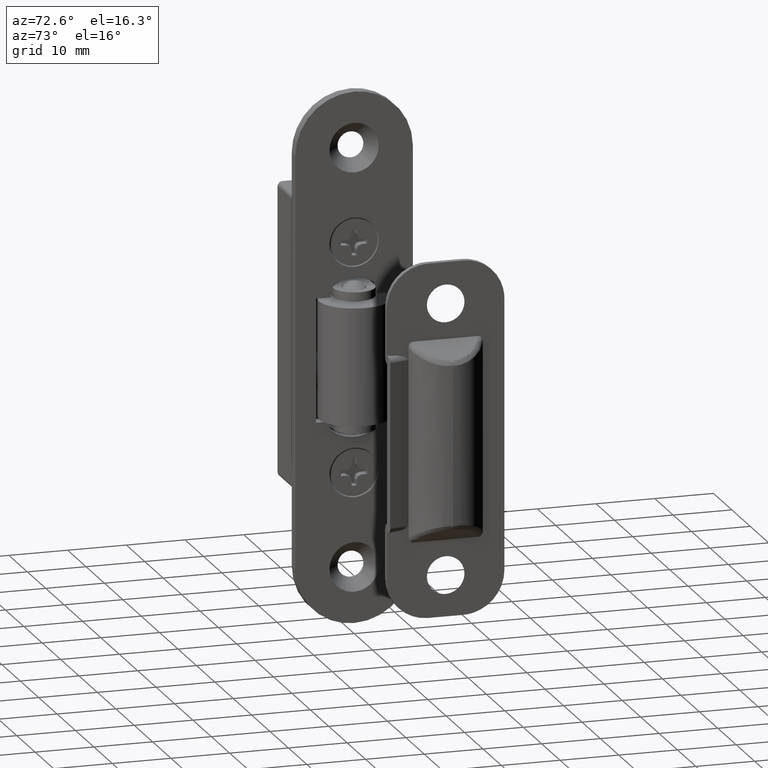
[diagram: clean part render]
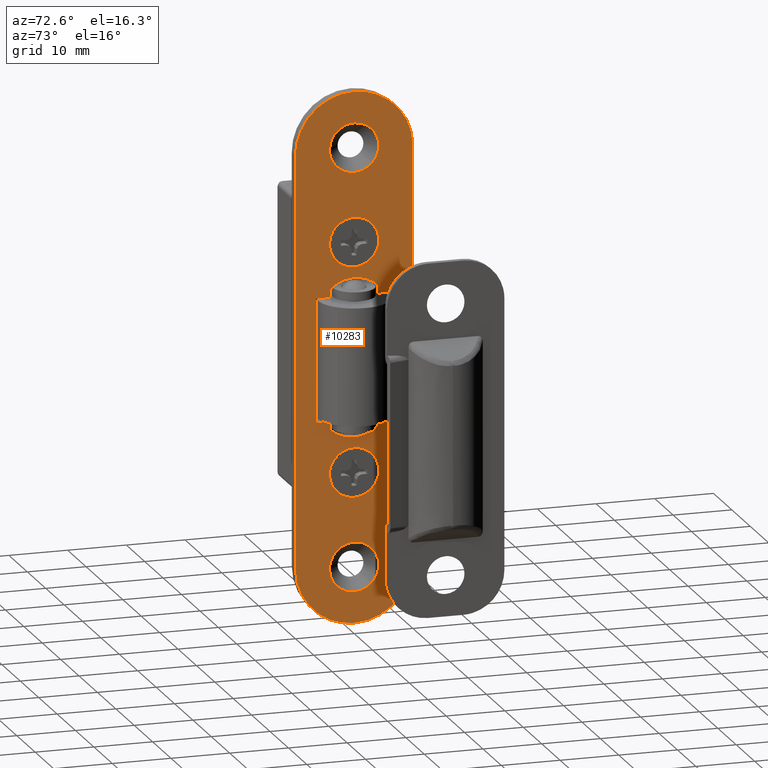
[diagram: same view with one face highlighted and labeled with its STEP entity id]
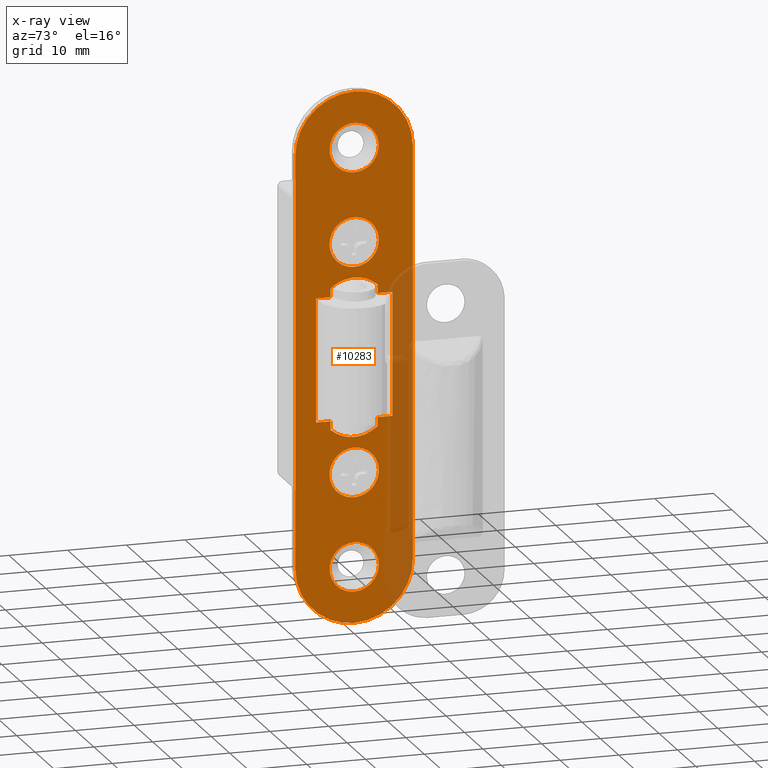
[diagram: x-ray of the same camera — body ghosted, the highlighted face saturated]
A machine part, auxiliary view. The second image highlights one B-rep face of the part: STEP entity #10283.
The next image is the same camera in x-ray: the body ghosted, the highlighted face saturated — about 19% of this face is hidden behind the body in this view.
In plain terms, the highlighted face is a freeform B-spline surface patch.
Its self-contained STEP definition (entity closure, byte-faithful):
#8758=CARTESIAN_POINT('',(-0.000000127589922,2.891088954432386,-22.546572080600281));
#8759=VERTEX_POINT('',#8758);
#8765=CARTESIAN_POINT('',(0.0,4.199999999999876,-19.499998977879880));
#8766=VERTEX_POINT('',#8765);
#8767=CARTESIAN_POINT('',(-0.000000127589922,2.891088954432386,-22.546572080600281));
#8768=CARTESIAN_POINT('',(-0.000000119913731,3.084271051086417,-22.363281099985912));
#8769=CARTESIAN_POINT('',(-0.000000101326676,3.470759188290290,-21.919462131662101));
#8770=CARTESIAN_POINT('',(-0.000000070583371,3.878747267155795,-21.185378060726858));
#8771=CARTESIAN_POINT('',(-0.000000035687701,4.140412021235725,-20.352144502934468));
#8772=CARTESIAN_POINT('',(-0.000000012639673,4.200050219923515,-19.801807176543370));
#8773=CARTESIAN_POINT('',(0.0,4.199999999999876,-19.499998977879880));
#8774=B_SPLINE_CURVE_WITH_KNOTS('',3,(#8767,#8768,#8769,#8770,#8771,#8772,#8773),.UNSPECIFIED.,.F.,.U.,(4,1,1,1,4),(0.000000034735828,0.798901644444813,1.757566852188273,2.503227493652744,3.408651733151656),.UNSPECIFIED.);
#8775=EDGE_CURVE('',#8759,#8766,#8774,.T.);
#8777=CARTESIAN_POINT('',(0.0,4.807121E-031,-15.300000000000001));
#8778=VERTEX_POINT('',#8777);
#8779=CARTESIAN_POINT('',(0.0,4.199999999999876,-19.499998977879880));
#8780=CARTESIAN_POINT('',(0.0,4.200089333518384,-19.156380804169679));
#8781=CARTESIAN_POINT('',(0.0,4.123661214923570,-18.537915498122619));
#8782=CARTESIAN_POINT('',(0.0,3.844486210474723,-17.757713986228190));
#8783=CARTESIAN_POINT('',(0.0,3.479346962281874,-17.113164387762328));
#8784=CARTESIAN_POINT('',(0.0,3.066532052600041,-16.603834164206930));
#8785=CARTESIAN_POINT('',(0.0,2.463574500565729,-16.063942290224041));
#8786=CARTESIAN_POINT('',(0.0,1.747760000560187,-15.640835812848280));
#8787=CARTESIAN_POINT('',(0.0,0.859004324312413,-15.359383449535990));
#8788=CARTESIAN_POINT('',(0.0,0.292065637414567,-15.299956247915009));
#8789=CARTESIAN_POINT('',(0.0,4.807121E-031,-15.300000000000001));
#8790=B_SPLINE_CURVE_WITH_KNOTS('',3,(#8779,#8780,#8781,#8782,#8783,#8784,#8785,#8786,#8787,#8788,#8789),.UNSPECIFIED.,.F.,.U.,(4,1,1,1,1,1,1,1,4),(0.000000121708704,1.030841463149830,1.855519226884957,2.474024404762239,3.247186588690337,3.814096205182862,4.896496278897972,5.721189998266727,6.597385391997104),.UNSPECIFIED.);
#8791=EDGE_CURVE('',#8766,#8778,#8790,.T.);
#8793=CARTESIAN_POINT('',(-0.000000127589932,-2.891088954432366,-16.453427919399740));
#8794=VERTEX_POINT('',#8793);
#8795=CARTESIAN_POINT('',(0.0,4.807121E-031,-15.300000000000001));
#8796=CARTESIAN_POINT('',(-0.000000010994056,-0.249116796116282,-15.299986772887390));
#8797=CARTESIAN_POINT('',(-0.000000035181158,-0.797177760076572,-15.348868151097641));
#8798=CARTESIAN_POINT('',(-0.000000064893778,-1.470442714479155,-15.545900468493411));
#8799=CARTESIAN_POINT('',(-0.000000097358794,-2.206074804575165,-15.896625588052171));
#8800=CARTESIAN_POINT('',(-0.000000115896851,-2.626132805083788,-16.201811956900130));
#8801=CARTESIAN_POINT('',(-0.000000127589932,-2.891088954432366,-16.453427919399740));
#8802=B_SPLINE_CURVE_WITH_KNOTS('',3,(#8795,#8796,#8797,#8798,#8799,#8800,#8801),.UNSPECIFIED.,.F.,.U.,(4,1,1,1,4),(0.000000028212433,0.747359194753699,1.644173595180333,2.092605752108407,3.188735094356407),.UNSPECIFIED.);
#8803=EDGE_CURVE('',#8778,#8794,#8802,.T.);
#8889=CARTESIAN_POINT('',(0.0,-4.199999999999876,-19.500001022120191));
#8890=VERTEX_POINT('',#8889);
#8891=CARTESIAN_POINT('',(-0.000000127589932,-2.891088954432366,-16.453427919399740));
#8892=CARTESIAN_POINT('',(-0.000000117867574,-3.135809969921077,-16.685576930037961));
#8893=CARTESIAN_POINT('',(-0.000000095360232,-3.580290007642232,-17.223003893630182));
#8894=CARTESIAN_POINT('',(-0.000000052040854,-4.072170019507790,-18.257377471640190));
#8895=CARTESIAN_POINT('',(-0.000000018588621,-4.200232381704464,-19.056144774480721));
#8896=CARTESIAN_POINT('',(0.0,-4.199999999999876,-19.500001022120191));
#8897=B_SPLINE_CURVE_WITH_KNOTS('',3,(#8891,#8892,#8893,#8894,#8895,#8896),.UNSPECIFIED.,.F.,.U.,(4,1,1,4),(0.000000034737508,1.011945163984032,2.077135547464278,3.408651733151720),.UNSPECIFIED.);
#8898=EDGE_CURVE('',#8794,#8890,#8897,.T.);
#8900=CARTESIAN_POINT('',(0.0,4.807121E-031,-23.699999999999999));
#8901=VERTEX_POINT('',#8900);
#8902=CARTESIAN_POINT('',(0.0,-4.199999999999876,-19.500001022120191));
#8903=CARTESIAN_POINT('',(0.0,-4.200084888898138,-19.843617812276388));
#8904=CARTESIAN_POINT('',(0.0,-4.123648187614274,-20.462074762723429));
#8905=CARTESIAN_POINT('',(0.0,-3.780616409741954,-21.421155589516498));
#8906=CARTESIAN_POINT('',(0.0,-3.245739360101021,-22.232394481763809));
#8907=CARTESIAN_POINT('',(0.0,-2.609234798520272,-22.816249963966371));
#8908=CARTESIAN_POINT('',(0.0,-2.003242676273612,-23.210464674858311));
#8909=CARTESIAN_POINT('',(0.0,-1.185312156901791,-23.579238924249939));
#8910=CARTESIAN_POINT('',(0.0,-0.463909514894941,-23.700257724143910));
#8911=CARTESIAN_POINT('',(0.0,4.807121E-031,-23.699999999999999));
#8912=B_SPLINE_CURVE_WITH_KNOTS('',3,(#8902,#8903,#8904,#8905,#8906,#8907,#8908,#8909,#8910,#8911),.UNSPECIFIED.,.F.,.U.,(4,1,1,1,1,1,1,4),(0.000000121715583,1.030841463155931,1.855519226890218,3.040998846687900,3.917172208473828,4.432604890989956,5.205756228323995,6.597385391997080),.UNSPECIFIED.);
#8913=EDGE_CURVE('',#8890,#8901,#8912,.T.);
#8915=CARTESIAN_POINT('',(0.0,4.807121E-031,-23.699999999999999));
#8916=CARTESIAN_POINT('',(-0.000000014659054,0.332162835564957,-23.700074345791091));
#8917=CARTESIAN_POINT('',(-0.000000041043021,0.930003119288854,-23.628682294682811));
#8918=CARTESIAN_POINT('',(-0.000000085590032,1.939403922563135,-23.280610870429321));
#8919=CARTESIAN_POINT('',(-0.000000112710463,2.553931930805967,-22.866904587818610));
#8920=CARTESIAN_POINT('',(-0.000000127589922,2.891088954432386,-22.546572080600281));
#8921=B_SPLINE_CURVE_WITH_KNOTS('',3,(#8915,#8916,#8917,#8918,#8919,#8920),.UNSPECIFIED.,.F.,.U.,(4,1,1,4),(0.000000028212705,0.996481803873372,1.793649544933215,3.188735094356434),.UNSPECIFIED.);
#8922=EDGE_CURVE('',#8901,#8759,#8921,.T.);
#8958=CARTESIAN_POINT('',(0.000000127278828,-3.096565096122050,22.337479129950609));
#8959=VERTEX_POINT('',#8958);
#8965=CARTESIAN_POINT('',(0.0,-4.199999999999876,19.500001022120191));
#8966=VERTEX_POINT('',#8965);
#8967=CARTESIAN_POINT('',(0.0,-4.199999999999876,19.500001022120191));
#8968=CARTESIAN_POINT('',(0.000000015285186,-4.200080556526580,19.840759861734970));
#8969=CARTESIAN_POINT('',(0.000000039301136,-4.134444288504318,20.376157130144652));
#8970=CARTESIAN_POINT('',(0.000000083731544,-3.814074549363801,21.366662103305519));
#8971=CARTESIAN_POINT('',(0.000000110653527,-3.436758349952064,21.966844644738870));
#8972=CARTESIAN_POINT('',(0.000000127278828,-3.096565096122050,22.337479129950609));
#8973=B_SPLINE_CURVE_WITH_KNOTS('',3,(#8967,#8968,#8969,#8970,#8971,#8972),.UNSPECIFIED.,.F.,.U.,(4,1,1,4),(0.000000028383936,1.022254044866874,1.606374213970514,3.115429270614884),.UNSPECIFIED.);
#8974=EDGE_CURVE('',#8966,#8959,#8973,.T.);
#8976=CARTESIAN_POINT('',(0.0,0.0,15.300000000000001));
#8977=VERTEX_POINT('',#8976);
#8978=CARTESIAN_POINT('',(0.0,0.0,15.300000000000001));
#8979=CARTESIAN_POINT('',(0.0,-0.326433328216844,15.299925805410149));
#8980=CARTESIAN_POINT('',(0.0,-0.876167329561973,15.364449247903361));
#8981=CARTESIAN_POINT('',(0.0,-1.761749105218752,15.650870568716860));
#8982=CARTESIAN_POINT('',(0.0,-2.510649269323726,16.087394656486651));
#8983=CARTESIAN_POINT('',(0.0,-3.252239486347556,16.784788390241680));
#8984=CARTESIAN_POINT('',(0.0,-3.791684412939069,17.592035443133859));
#8985=CARTESIAN_POINT('',(0.0,-4.129478734541383,18.555085310197018));
#8986=CARTESIAN_POINT('',(0.0,-4.200051839062726,19.190749578707749));
#8987=CARTESIAN_POINT('',(0.0,-4.199999999999876,19.500001022120191));
#8988=B_SPLINE_CURVE_WITH_KNOTS('',3,(#8978,#8979,#8980,#8981,#8982,#8983,#8984,#8985,#8986,#8987),.UNSPECIFIED.,.F.,.U.,(4,1,1,1,1,1,1,4),(0.000000121356852,0.979284528902885,1.649347558732350,2.783293729390979,3.556390393598517,4.690322748570147,5.669633239808733,6.597386544171937),.UNSPECIFIED.);
#8989=EDGE_CURVE('',#8977,#8966,#8988,.T.);
#8991=CARTESIAN_POINT('',(0.000000127278820,3.096565096122033,16.662520870049409));
#8992=VERTEX_POINT('',#8991);
#8993=CARTESIAN_POINT('',(0.000000127278820,3.096565096122033,16.662520870049409));
#8994=CARTESIAN_POINT('',(0.000000117713186,2.863842868100833,16.408408959030439));
#8995=CARTESIAN_POINT('',(0.000000097133566,2.363161527211673,15.981761814715290));
#8996=CARTESIAN_POINT('',(0.000000067757120,1.648462258628189,15.616165008336200));
#8997=CARTESIAN_POINT('',(0.000000035777995,0.870442470896092,15.366209266847550));
#8998=CARTESIAN_POINT('',(0.000000014908886,0.362718123610681,15.299877925597720));
#8999=CARTESIAN_POINT('',(0.0,0.0,15.300000000000001));
#9000=B_SPLINE_CURVE_WITH_KNOTS('',3,(#8993,#8994,#8995,#8996,#8997,#8998,#8999),.UNSPECIFIED.,.F.,.U.,(4,1,1,1,4),(0.000000038603996,1.033707591047397,1.958582947615455,2.393839093075838,3.481956358413444),.UNSPECIFIED.);
#9001=EDGE_CURVE('',#8992,#8977,#9000,.T.);
#9087=CARTESIAN_POINT('',(0.0,4.199999999999876,19.499998977879880));
#9088=VERTEX_POINT('',#9087);
#9089=CARTESIAN_POINT('',(0.0,4.199999999999876,19.499998977879880));
#9090=CARTESIAN_POINT('',(0.000000013829236,4.200056478369770,19.191698201501630));
#9091=CARTESIAN_POINT('',(0.000000038574081,4.138950291934130,18.640051362331810));
#9092=CARTESIAN_POINT('',(0.000000083148222,3.823942932435970,17.646342030267292));
#9093=CARTESIAN_POINT('',(0.000000111188109,3.425706675512710,17.021237549938711));
#9094=CARTESIAN_POINT('',(0.000000127278820,3.096565096122033,16.662520870049409));
#9095=B_SPLINE_CURVE_WITH_KNOTS('',3,(#9089,#9090,#9091,#9092,#9093,#9094),.UNSPECIFIED.,.F.,.U.,(4,1,1,4),(0.000000028381526,0.924896228881257,1.655063897063775,3.115429270614945),.UNSPECIFIED.);
#9096=EDGE_CURVE('',#9088,#8992,#9095,.T.);
#9098=CARTESIAN_POINT('',(0.0,0.0,23.699999999999999));
#9099=VERTEX_POINT('',#9098);
#9100=CARTESIAN_POINT('',(0.0,0.0,23.699999999999999));
#9101=CARTESIAN_POINT('',(0.0,0.326433032691356,23.700074742951461));
#9102=CARTESIAN_POINT('',(0.0,0.876175288094685,23.635561390374519));
#9103=CARTESIAN_POINT('',(0.0,1.630503757863785,23.391491514201601));
#9104=CARTESIAN_POINT('',(0.0,2.212154463696283,23.089692117046329));
#9105=CARTESIAN_POINT('',(0.0,2.823517213653240,22.642131044447321));
#9106=CARTESIAN_POINT('',(0.0,3.309347009293834,22.125509992208379));
#9107=CARTESIAN_POINT('',(0.0,3.755825419039624,21.429910228938809));
#9108=CARTESIAN_POINT('',(0.0,4.099843386250924,20.599497147146330));
#9109=CARTESIAN_POINT('',(0.0,4.200146870460784,19.895162245856220));
#9110=CARTESIAN_POINT('',(0.0,4.199999999999876,19.499998977879880));
#9111=B_SPLINE_CURVE_WITH_KNOTS('',3,(#9100,#9101,#9102,#9103,#9104,#9105,#9106,#9107,#9108,#9109,#9110),.UNSPECIFIED.,.F.,.U.,(4,1,1,1,1,1,1,1,4),(0.000000121367318,0.979284528911462,1.649347558739600,2.370946597304840,2.937928951014365,3.917172893166649,4.484157643070808,5.411922243433297,6.597386544171900),.UNSPECIFIED.);
#9112=EDGE_CURVE('',#9099,#9088,#9111,.T.);
#9114=CARTESIAN_POINT('',(0.000000127278828,-3.096565096122050,22.337479129950609));
#9115=CARTESIAN_POINT('',(0.000000114696657,-2.790453597194396,22.671984402588141));
#9116=CARTESIAN_POINT('',(0.000000090952849,-2.212790787001241,23.126246467997209));
#9117=CARTESIAN_POINT('',(0.000000046955649,-1.142383424631221,23.589041269214711));
#9118=CARTESIAN_POINT('',(0.000000017890995,-0.435269815984724,23.700213506174940));
#9119=CARTESIAN_POINT('',(0.0,0.0,23.699999999999999));
#9120=B_SPLINE_CURVE_WITH_KNOTS('',3,(#9114,#9115,#9116,#9117,#9118,#9119),.UNSPECIFIED.,.F.,.U.,(4,1,1,4),(0.000000038603980,1.360151617735278,2.176222115273181,3.481956358413448),.UNSPECIFIED.);
#9121=EDGE_CURVE('',#8959,#9099,#9120,.T.);
#9158=CARTESIAN_POINT('',(-0.000000127589924,2.891088954432382,-38.546572080600278));
#9159=VERTEX_POINT('',#9158);
#9165=CARTESIAN_POINT('',(0.0,4.199999999999876,-35.499998977879869));
#9166=VERTEX_POINT('',#9165);
#9167=CARTESIAN_POINT('',(-0.000000127589924,2.891088954432382,-38.546572080600278));
#9168=CARTESIAN_POINT('',(-0.000000117356642,3.148724118620786,-38.302223261214792));
#9169=CARTESIAN_POINT('',(-0.000000099936769,3.488166061152559,-37.886274116954979));
#9170=CARTESIAN_POINT('',(-0.000000070428043,3.868110717208727,-37.181669144556047));
#9171=CARTESIAN_POINT('',(-0.000000039404474,4.126890952154666,-36.440893030472097));
#9172=CARTESIAN_POINT('',(-0.000000014126767,4.200074972587811,-35.837315777988891));
#9173=CARTESIAN_POINT('',(0.0,4.199999999999876,-35.499998977879869));
#9174=B_SPLINE_CURVE_WITH_KNOTS('',3,(#9167,#9168,#9169,#9170,#9171,#9172,#9173),.UNSPECIFIED.,.F.,.U.,(4,1,1,1,4),(0.000000034736533,1.065209237298837,1.597819834155446,2.396706603883506,3.408651733151664),.UNSPECIFIED.);
#9175=EDGE_CURVE('',#9159,#9166,#9174,.T.);
#9177=CARTESIAN_POINT('',(0.0,0.0,-31.299999999999990));
#9178=VERTEX_POINT('',#9177);
#9179=CARTESIAN_POINT('',(0.0,4.199999999999876,-35.499998977879869));
#9180=CARTESIAN_POINT('',(0.0,4.200019816748009,-35.242289631538910));
#9181=CARTESIAN_POINT('',(0.0,4.149258517867820,-34.692513972167660));
#9182=CARTESIAN_POINT('',(0.0,3.908551290569511,-33.881026665589417));
#9183=CARTESIAN_POINT('',(0.0,3.439136400877847,-33.015446174402122));
#9184=CARTESIAN_POINT('',(0.0,2.805664579686278,-32.325050038740173));
#9185=CARTESIAN_POINT('',(0.0,2.108808163677606,-31.847143647760110));
#9186=CARTESIAN_POINT('',(0.0,1.501457569466108,-31.559870840423908));
#9187=CARTESIAN_POINT('',(0.0,0.807465407521777,-31.353985805054162));
#9188=CARTESIAN_POINT('',(0.0,0.292066186102809,-31.299954670577129));
#9189=CARTESIAN_POINT('',(0.0,0.0,-31.299999999999990));
#9190=B_SPLINE_CURVE_WITH_KNOTS('',3,(#9179,#9180,#9181,#9182,#9183,#9184,#9185,#9186,#9187,#9188,#9189),.UNSPECIFIED.,.F.,.U.,(4,1,1,1,1,1,1,1,4),(0.000000121699506,0.773131613853167,1.649347271003482,2.525581497095486,3.711024032301228,4.432604890984791,5.051125254659883,5.721189998265750,6.597385391997128),.UNSPECIFIED.);
#9191=EDGE_CURVE('',#9166,#9178,#9190,.T.);
#9193=CARTESIAN_POINT('',(-0.000000127589931,-2.891088954432367,-32.453427919399743));
#9194=VERTEX_POINT('',#9193);
#9195=CARTESIAN_POINT('',(0.0,0.0,-31.299999999999990));
#9196=CARTESIAN_POINT('',(-0.000000010261105,-0.232508697145894,-31.299991375883209));
#9197=CARTESIAN_POINT('',(-0.000000032982804,-0.747364771043071,-31.342831763175479));
#9198=CARTESIAN_POINT('',(-0.000000062827122,-1.423613888853704,-31.527748367969188));
#9199=CARTESIAN_POINT('',(-0.000000096163317,-2.178986219921030,-31.876935390530129));
#9200=CARTESIAN_POINT('',(-0.000000115896788,-2.626131386996454,-32.201816136882123));
#9201=CARTESIAN_POINT('',(-0.000000127589931,-2.891088954432367,-32.453427919399743));
#9202=B_SPLINE_CURVE_WITH_KNOTS('',3,(#9195,#9196,#9197,#9198,#9199,#9200,#9201),.UNSPECIFIED.,.F.,.U.,(4,1,1,1,4),(0.000000028210387,0.697533876286800,1.544561527409979,2.092605752107732,3.188735094356408),.UNSPECIFIED.);
#9203=EDGE_CURVE('',#9178,#9194,#9202,.T.);
#9290=CARTESIAN_POINT('',(0.0,-4.199999999999876,-35.500001022120188));
#9291=VERTEX_POINT('',#9290);
#9292=CARTESIAN_POINT('',(-0.000000127589931,-2.891088954432367,-32.453427919399743));
#9293=CARTESIAN_POINT('',(-0.000000116333543,-3.174481971148925,-32.722206297908670));
#9294=CARTESIAN_POINT('',(-0.000000090480555,-3.665489929065688,-33.339520107916883));
#9295=CARTESIAN_POINT('',(-0.000000046096775,-4.104971216524419,-34.399309287724527));
#9296=CARTESIAN_POINT('',(-0.000000014870223,-4.200066698914601,-35.144932123907623));
#9297=CARTESIAN_POINT('',(0.0,-4.199999999999876,-35.500001022120188));
#9298=B_SPLINE_CURVE_WITH_KNOTS('',3,(#9292,#9293,#9294,#9295,#9296,#9297),.UNSPECIFIED.,.F.,.U.,(4,1,1,4),(0.000000034731505,1.171730189715928,2.343442530555324,3.408651733151717),.UNSPECIFIED.);
#9299=EDGE_CURVE('',#9194,#9291,#9298,.T.);
#9301=CARTESIAN_POINT('',(0.0,0.0,-39.700000000000003));
#9302=VERTEX_POINT('',#9301);
#9303=CARTESIAN_POINT('',(0.0,-4.199999999999876,-35.500001022120188));
#9304=CARTESIAN_POINT('',(0.0,-4.200038466195331,-35.826422926507419));
#9305=CARTESIAN_POINT('',(0.0,-4.113570695338733,-36.565208501127977));
#9306=CARTESIAN_POINT('',(0.0,-3.707338153419275,-37.581161972840299));
#9307=CARTESIAN_POINT('',(0.0,-3.130706151378051,-38.338766267785751));
#9308=CARTESIAN_POINT('',(0.0,-2.514858562311893,-38.890056263118211));
#9309=CARTESIAN_POINT('',(0.0,-1.826327184322788,-39.320262203858277));
#9310=CARTESIAN_POINT('',(0.0,-0.944917083664342,-39.629490369384342));
#9311=CARTESIAN_POINT('',(0.0,-0.309252420425094,-39.700051195631062));
#9312=CARTESIAN_POINT('',(0.0,0.0,-39.700000000000003));
#9313=B_SPLINE_CURVE_WITH_KNOTS('',3,(#9303,#9304,#9305,#9306,#9307,#9308,#9309,#9310,#9311,#9312),.UNSPECIFIED.,.F.,.U.,(4,1,1,1,1,1,1,4),(0.000000121717969,0.979284358129777,2.216310251430215,3.247186588695174,3.814096205186777,4.690321929097811,5.669632249108232,6.597385391997109),.UNSPECIFIED.);
#9314=EDGE_CURVE('',#9291,#9302,#9313,.T.);
#9316=CARTESIAN_POINT('',(0.0,0.0,-39.700000000000003));
#9317=CARTESIAN_POINT('',(-0.000000016125295,0.365386705469979,-39.700114175433441));
#9318=CARTESIAN_POINT('',(-0.000000046906225,1.062858757342386,-39.608400682210643));
#9319=CARTESIAN_POINT('',(-0.000000090783170,2.057076393190164,-39.211771718971782));
#9320=CARTESIAN_POINT('',(-0.000000115896036,2.626114504699341,-38.798153648212697));
#9321=CARTESIAN_POINT('',(-0.000000127589924,2.891088954432382,-38.546572080600278));
#9322=B_SPLINE_CURVE_WITH_KNOTS('',3,(#9316,#9317,#9318,#9319,#9320,#9321),.UNSPECIFIED.,.F.,.U.,(4,1,1,4),(0.000000028212281,1.096129370452105,2.092605752108092,3.188735094356408),.UNSPECIFIED.);
#9323=EDGE_CURVE('',#9302,#9159,#9322,.T.);
#9360=CARTESIAN_POINT('',(0.000000127278829,-3.096565096122052,38.337479129950609));
#9361=VERTEX_POINT('',#9360);
#9367=CARTESIAN_POINT('',(0.0,-4.199999999999876,35.500001022120188));
#9368=VERTEX_POINT('',#9367);
#9369=CARTESIAN_POINT('',(0.0,-4.199999999999876,35.500001022120188));
#9370=CARTESIAN_POINT('',(0.000000015285204,-4.200092867440510,35.840760254386787));
#9371=CARTESIAN_POINT('',(0.000000039301350,-4.134443277820850,36.376161879167618));
#9372=CARTESIAN_POINT('',(0.000000083730986,-3.814057719743250,37.366649647309742));
#9373=CARTESIAN_POINT('',(0.000000110654133,-3.436779925010074,37.966858138774192));
#9374=CARTESIAN_POINT('',(0.000000127278829,-3.096565096122052,38.337479129950609));
#9375=B_SPLINE_CURVE_WITH_KNOTS('',3,(#9369,#9370,#9371,#9372,#9373,#9374),.UNSPECIFIED.,.F.,.U.,(4,1,1,4),(0.000000028379538,1.022254044864332,1.606374213968566,3.115429270614882),.UNSPECIFIED.);
#9376=EDGE_CURVE('',#9368,#9361,#9375,.T.);
#9378=CARTESIAN_POINT('',(0.0,0.0,31.299999999999990));
#9379=VERTEX_POINT('',#9378);
#9380=CARTESIAN_POINT('',(0.0,0.0,31.299999999999990));
#9381=CARTESIAN_POINT('',(0.0,-0.429549548281173,31.299762626147530));
#9382=CARTESIAN_POINT('',(0.0,-1.047902869610225,31.395751644310199));
#9383=CARTESIAN_POINT('',(0.0,-1.961515375874870,31.754599519691070));
#9384=CARTESIAN_POINT('',(0.0,-2.705046910406873,32.231802273742531));
#9385=CARTESIAN_POINT('',(0.0,-3.309345395881048,32.874496191730152));
#9386=CARTESIAN_POINT('',(0.0,-3.755823818894949,33.570090729012371));
#9387=CARTESIAN_POINT('',(0.0,-4.099848399439318,34.400502223535980));
#9388=CARTESIAN_POINT('',(0.0,-4.200141448306683,35.104838403523843));
#9389=CARTESIAN_POINT('',(0.0,-4.199999999999876,35.500001022120188));
#9390=B_SPLINE_CURVE_WITH_KNOTS('',3,(#9380,#9381,#9382,#9383,#9384,#9385,#9386,#9387,#9388,#9389),.UNSPECIFIED.,.F.,.U.,(4,1,1,1,1,1,1,4),(0.000000121361883,1.288551447789834,1.855519550662302,2.937928951011319,3.917172893164047,4.484157643068717,5.411922243432528,6.597386544171928),.UNSPECIFIED.);
#9391=EDGE_CURVE('',#9379,#9368,#9390,.T.);
#9393=CARTESIAN_POINT('',(0.000000127278821,3.096565096122035,32.662520870049413));
#9394=VERTEX_POINT('',#9393);
#9395=CARTESIAN_POINT('',(0.000000127278821,3.096565096122035,32.662520870049413));
#9396=CARTESIAN_POINT('',(0.000000115198265,2.802657376388279,32.341455461088117));
#9397=CARTESIAN_POINT('',(0.000000093963056,2.286026192193716,31.929578012327159));
#9398=CARTESIAN_POINT('',(0.000000058792538,1.430363045448505,31.526364497764028));
#9399=CARTESIAN_POINT('',(0.000000029816803,0.725412689886201,31.339514089434822));
#9400=CARTESIAN_POINT('',(8.944759E-009,0.217616940970525,31.299996662762862));
#9401=CARTESIAN_POINT('',(0.0,0.0,31.299999999999990));
#9402=B_SPLINE_CURVE_WITH_KNOTS('',3,(#9395,#9396,#9397,#9398,#9399,#9400,#9401),.UNSPECIFIED.,.F.,.U.,(4,1,1,1,4),(0.000000038603140,1.305734281769877,1.958582947614872,2.829095463879432,3.481956358413469),.UNSPECIFIED.);
#9403=EDGE_CURVE('',#9394,#9379,#9402,.T.);
#9491=CARTESIAN_POINT('',(0.0,4.199999999999876,35.499998977879869));
#9492=VERTEX_POINT('',#9491);
#9493=CARTESIAN_POINT('',(0.0,4.199999999999876,35.499998977879869));
#9494=CARTESIAN_POINT('',(0.000000015285212,4.200094154289625,35.159239547964340));
#9495=CARTESIAN_POINT('',(0.000000039301343,4.134442492018689,34.623838223104087));
#9496=CARTESIAN_POINT('',(0.000000083730921,3.814055773950706,33.633351685075667));
#9497=CARTESIAN_POINT('',(0.000000110654281,3.436786006795418,33.033138405389060));
#9498=CARTESIAN_POINT('',(0.000000127278821,3.096565096122035,32.662520870049413));
#9499=B_SPLINE_CURVE_WITH_KNOTS('',3,(#9493,#9494,#9495,#9496,#9497,#9498),.UNSPECIFIED.,.F.,.U.,(4,1,1,4),(0.000000028379919,1.022254044864885,1.606374213969365,3.115429270614933),.UNSPECIFIED.);
#9500=EDGE_CURVE('',#9492,#9394,#9499,.T.);
#9502=CARTESIAN_POINT('',(0.0,0.0,39.700000000000003));
#9503=VERTEX_POINT('',#9502);
#9504=CARTESIAN_POINT('',(0.0,0.0,39.700000000000003));
#9505=CARTESIAN_POINT('',(0.0,0.429546582604751,39.700219240065159));
#9506=CARTESIAN_POINT('',(0.0,1.082259845517026,39.598936248713130));
#9507=CARTESIAN_POINT('',(0.0,2.024150193910546,39.215549643737809));
#9508=CARTESIAN_POINT('',(0.0,2.727014748268989,38.739668034494571));
#9509=CARTESIAN_POINT('',(0.0,3.424446727050189,37.998087144645297));
#9510=CARTESIAN_POINT('',(0.0,3.874033085804888,37.215812275312523));
#9511=CARTESIAN_POINT('',(0.0,4.144196804511053,36.324631460060303));
#9512=CARTESIAN_POINT('',(0.0,4.200045422179262,35.792066273520767));
#9513=CARTESIAN_POINT('',(0.0,4.199999999999876,35.499998977879869));
#9514=B_SPLINE_CURVE_WITH_KNOTS('',3,(#9504,#9505,#9506,#9507,#9508,#9509,#9510,#9511,#9512,#9513),.UNSPECIFIED.,.F.,.U.,(4,1,1,1,1,1,1,4),(0.000000121362388,1.288551447790196,1.958601328870642,3.040999378473883,3.814096872412536,4.999582751984373,5.721190997714636,6.597386544171899),.UNSPECIFIED.);
#9515=EDGE_CURVE('',#9503,#9492,#9514,.T.);
#9517=CARTESIAN_POINT('',(0.000000127278829,-3.096565096122052,38.337479129950609));
#9518=CARTESIAN_POINT('',(0.000000120732591,-2.937301753778669,38.511306054932597));
#9519=CARTESIAN_POINT('',(0.000000105332927,-2.562643507349510,38.856727179844391));
#9520=CARTESIAN_POINT('',(0.000000080007200,-1.946494203683031,39.246012255595659));
#9521=CARTESIAN_POINT('',(0.000000044719330,-1.087976030025063,39.597579518030997));
#9522=CARTESIAN_POINT('',(0.000000017891199,-0.435274761993045,39.700216528081548));
#9523=CARTESIAN_POINT('',(0.0,0.0,39.700000000000003));
#9524=B_SPLINE_CURVE_WITH_KNOTS('',3,(#9517,#9518,#9519,#9520,#9521,#9522,#9523),.UNSPECIFIED.,.F.,.U.,(4,1,1,1,4),(0.000000038605382,0.707270646086946,1.523373449434113,2.176222115273501,3.481956358413439),.UNSPECIFIED.);
#9525=EDGE_CURVE('',#9361,#9503,#9524,.T.);
#9762=CARTESIAN_POINT('',(0.0,-4.0,10.500000000000000));
#9763=VERTEX_POINT('',#9762);
#9769=CARTESIAN_POINT('',(0.0,-6.500000000000000,10.500000000000000));
#9770=VERTEX_POINT('',#9769);
#9771=CARTESIAN_POINT('',(0.0,-6.500000000000000,10.500000000000000));
#9772=CARTESIAN_POINT('',(0.0,-4.0,10.500000000000000));
#9773=QUASI_UNIFORM_CURVE('',1,(#9771,#9772),.UNSPECIFIED.,.F.,.U.);
#9774=EDGE_CURVE('',#9770,#9763,#9773,.T.);
#9791=CARTESIAN_POINT('',(0.0,-6.500000000000000,-10.500000000000000));
#9792=VERTEX_POINT('',#9791);
#9793=CARTESIAN_POINT('',(0.0,-6.500000000000000,-10.500000000000000));
#9794=CARTESIAN_POINT('',(0.0,-6.500000000000000,10.500000000000000));
#9795=QUASI_UNIFORM_CURVE('',1,(#9793,#9794),.UNSPECIFIED.,.F.,.U.);
#9796=EDGE_CURVE('',#9792,#9770,#9795,.T.);
#9813=CARTESIAN_POINT('',(0.0,-4.0,-10.500000000000000));
#9814=VERTEX_POINT('',#9813);
#9815=CARTESIAN_POINT('',(0.0,-4.0,-10.500000000000000));
#9816=CARTESIAN_POINT('',(0.0,-6.500000000000000,-10.500000000000000));
#9817=QUASI_UNIFORM_CURVE('',1,(#9815,#9816),.UNSPECIFIED.,.F.,.U.);
#9818=EDGE_CURVE('',#9814,#9792,#9817,.T.);
#9835=CARTESIAN_POINT('',(0.0,-4.0,-11.972135954999580));
#9836=VERTEX_POINT('',#9835);
#9837=CARTESIAN_POINT('',(0.0,-4.0,-11.972135954999580));
#9838=CARTESIAN_POINT('',(0.0,-4.0,-10.500000000000000));
#9839=QUASI_UNIFORM_CURVE('',1,(#9837,#9838),.UNSPECIFIED.,.F.,.U.);
#9840=EDGE_CURVE('',#9836,#9814,#9839,.T.);
#9866=CARTESIAN_POINT('',(0.0,4.0,-11.972137000000020));
#9867=VERTEX_POINT('',#9866);
#9868=CARTESIAN_POINT('',(0.0,-4.0,-11.972135954999580));
#9869=CARTESIAN_POINT('',(0.0,-3.762055611664382,-12.184981566764231));
#9870=CARTESIAN_POINT('',(0.0,-3.215657331253267,-12.600266117152060));
#9871=CARTESIAN_POINT('',(0.0,-2.280810041183180,-13.085672319908941));
#9872=CARTESIAN_POINT('',(0.0,-1.251480899458477,-13.400061141696860));
#9873=CARTESIAN_POINT('',(0.0,-0.138022339441876,-13.534029308258640));
#9874=CARTESIAN_POINT('',(0.0,0.868271199189341,-13.465070581650480));
#9875=CARTESIAN_POINT('',(0.0,1.846283851096394,-13.232177709579570));
#9876=CARTESIAN_POINT('',(0.0,2.886975038913128,-12.814194036501750));
#9877=CARTESIAN_POINT('',(0.0,3.609169461175230,-12.321933501670390));
#9878=CARTESIAN_POINT('',(0.0,4.0,-11.972137000000020));
#9879=B_SPLINE_CURVE_WITH_KNOTS('',3,(#9868,#9869,#9870,#9871,#9872,#9873,#9874,#9875,#9876,#9877,#9878),.UNSPECIFIED.,.F.,.U.,(4,1,1,1,1,1,1,1,4),(0.000000092101853,0.957755305803742,2.052370224909008,3.146980720849840,4.173161154949208,5.404562587623282,6.157102466982084,7.183306572219371,8.756778802932120),.UNSPECIFIED.);
#9880=EDGE_CURVE('',#9836,#9867,#9879,.T.);
#9897=CARTESIAN_POINT('',(0.0,4.0,-10.500000000000000));
#9898=VERTEX_POINT('',#9897);
#9899=CARTESIAN_POINT('',(0.0,4.0,-10.500000000000000));
#9900=CARTESIAN_POINT('',(0.0,4.0,-11.972137000000020));
#9901=QUASI_UNIFORM_CURVE('',1,(#9899,#9900),.UNSPECIFIED.,.F.,.U.);
#9902=EDGE_CURVE('',#9898,#9867,#9901,.T.);
#9919=CARTESIAN_POINT('',(0.0,6.500000000000000,-10.500000000000000));
#9920=VERTEX_POINT('',#9919);
#9921=CARTESIAN_POINT('',(0.0,6.500000000000000,-10.500000000000000));
#9922=CARTESIAN_POINT('',(0.0,4.0,-10.500000000000000));
#9923=QUASI_UNIFORM_CURVE('',1,(#9921,#9922),.UNSPECIFIED.,.F.,.U.);
#9924=EDGE_CURVE('',#9920,#9898,#9923,.T.);
#9941=CARTESIAN_POINT('',(0.0,6.500000000000000,10.500000000000000));
#9942=VERTEX_POINT('',#9941);
#9943=CARTESIAN_POINT('',(0.0,6.500000000000000,10.500000000000000));
#9944=CARTESIAN_POINT('',(0.0,6.500000000000000,-10.500000000000000));
#9945=QUASI_UNIFORM_CURVE('',1,(#9943,#9944),.UNSPECIFIED.,.F.,.U.);
#9946=EDGE_CURVE('',#9942,#9920,#9945,.T.);
#9963=CARTESIAN_POINT('',(0.0,4.0,10.500000000000000));
#9964=VERTEX_POINT('',#9963);
#9965=CARTESIAN_POINT('',(0.0,4.0,10.500000000000000));
#9966=CARTESIAN_POINT('',(0.0,6.500000000000000,10.500000000000000));
#9967=QUASI_UNIFORM_CURVE('',1,(#9965,#9966),.UNSPECIFIED.,.F.,.U.);
#9968=EDGE_CURVE('',#9964,#9942,#9967,.T.);
#9985=CARTESIAN_POINT('',(0.0,4.0,11.972135954999580));
#9986=VERTEX_POINT('',#9985);
#9987=CARTESIAN_POINT('',(0.0,4.0,11.972135954999580));
#9988=CARTESIAN_POINT('',(0.0,4.0,10.500000000000000));
#9989=QUASI_UNIFORM_CURVE('',1,(#9987,#9988),.UNSPECIFIED.,.F.,.U.);
#9990=EDGE_CURVE('',#9986,#9964,#9989,.T.);
#10016=CARTESIAN_POINT('',(0.0,-4.0,11.972135954999580));
#10017=VERTEX_POINT('',#10016);
#10018=CARTESIAN_POINT('',(0.0,4.0,11.972135954999580));
#10019=CARTESIAN_POINT('',(0.0,3.711084120629942,12.230617084426850));
#10020=CARTESIAN_POINT('',(0.0,3.156788091763108,12.637043429382150));
#10021=CARTESIAN_POINT('',(0.0,2.174160081956440,13.126120454819970));
#10022=CARTESIAN_POINT('',(0.0,1.206193084149268,13.409756435810460));
#10023=CARTESIAN_POINT('',(0.0,0.183218417353855,13.520966420783180));
#10024=CARTESIAN_POINT('',(0.0,-0.708034201314652,13.480274402794370));
#10025=CARTESIAN_POINT('',(0.0,-1.762253047564062,13.273439357133270));
#10026=CARTESIAN_POINT('',(0.0,-2.891810758453170,12.819686047506011));
#10027=CARTESIAN_POINT('',(0.0,-3.660107850108759,12.276240694655030));
#10028=CARTESIAN_POINT('',(0.0,-4.0,11.972135954999580));
#10029=B_SPLINE_CURVE_WITH_KNOTS('',3,(#10018,#10019,#10020,#10021,#10022,#10023,#10024,#10025,#10026,#10027,#10028),.UNSPECIFIED.,.F.,.U.,(4,1,1,1,1,1,1,1,4),(0.000000092102418,1.162994546408131,2.052370342989804,3.283799356354879,4.173161395055309,5.130899442782850,5.951862022306033,7.388547741555676,8.756779306742384),.UNSPECIFIED.);
#10030=EDGE_CURVE('',#9986,#10017,#10029,.T.);
#10047=CARTESIAN_POINT('',(0.0,-4.0,10.500000000000000));
#10048=CARTESIAN_POINT('',(0.0,-4.0,11.972135954999580));
#10049=QUASI_UNIFORM_CURVE('',1,(#10047,#10048),.UNSPECIFIED.,.F.,.U.);
#10050=EDGE_CURVE('',#9763,#10017,#10049,.T.);
#10062=CARTESIAN_POINT('',(0.0,9.999984999999999,35.017320501624148));
#10063=VERTEX_POINT('',#10062);
#10069=CARTESIAN_POINT('',(0.0,9.999984999999999,-34.982679498375752));
#10070=VERTEX_POINT('',#10069);
#10071=CARTESIAN_POINT('',(0.0,9.999984999999999,-34.982679498375752));
#10072=CARTESIAN_POINT('',(0.0,9.999984999999999,35.017320501624148));
#10073=QUASI_UNIFORM_CURVE('',1,(#10071,#10072),.UNSPECIFIED.,.F.,.U.);
#10074=EDGE_CURVE('',#10070,#10063,#10073,.T.);
#10105=CARTESIAN_POINT('',(0.0,0.008660245230390,-44.999996250006937));
#10106=VERTEX_POINT('',#10105);
#10107=CARTESIAN_POINT('',(0.0,0.008660245230390,-44.999996250006937));
#10108=CARTESIAN_POINT('',(0.0,0.909128256514191,-44.999552832520877));
#10109=CARTESIAN_POINT('',(0.0,2.423117510689157,-44.791883532158117));
#10110=CARTESIAN_POINT('',(0.0,4.459564646002665,-44.018196861831271));
#10111=CARTESIAN_POINT('',(0.0,5.894049702440257,-43.131927940419843));
#10112=CARTESIAN_POINT('',(0.0,7.134682440323763,-42.058976314470883));
#10113=CARTESIAN_POINT('',(0.0,8.259982436979502,-40.751074984431469));
#10114=CARTESIAN_POINT('',(0.0,9.170999224728483,-39.137440169561778));
#10115=CARTESIAN_POINT('',(0.0,9.836908239623284,-37.152088642228222));
#10116=CARTESIAN_POINT('',(0.0,10.001623892103879,-35.801271130858531));
#10117=CARTESIAN_POINT('',(0.0,9.999984999999999,-34.982679498375752));
#10118=B_SPLINE_CURVE_WITH_KNOTS('',3,(#10107,#10108,#10109,#10110,#10111,#10112,#10113,#10114,#10115,#10116,#10117),.UNSPECIFIED.,.F.,.U.,(4,1,1,1,1,1,1,1,4),(0.000000019543435,2.701300523106253,4.543115978761779,6.507730462067581,7.735583431721687,9.454579895795384,11.664754793220141,13.260993632914380,15.716722255825429),.UNSPECIFIED.);
#10119=EDGE_CURVE('',#10106,#10070,#10118,.T.);
#10121=CARTESIAN_POINT('',(0.0,-9.999999999999890,-35.0));
#10122=VERTEX_POINT('',#10121);
#10123=CARTESIAN_POINT('',(0.0,-9.999999999999890,-35.0));
#10124=CARTESIAN_POINT('',(0.0,-10.000109179066611,-35.736714858238109));
#10125=CARTESIAN_POINT('',(0.0,-9.831976944500660,-37.251055310771299));
#10126=CARTESIAN_POINT('',(0.0,-9.135776324532307,-39.233977740421331));
#10127=CARTESIAN_POINT('',(0.0,-8.184786826740361,-40.819243190855850));
#10128=CARTESIAN_POINT('',(0.0,-7.127405645568711,-42.074939079823380));
#10129=CARTESIAN_POINT('',(0.0,-5.758219852377883,-43.254988013324777));
#10130=CARTESIAN_POINT('',(0.0,-4.073707027639164,-44.207994648029690));
#10131=CARTESIAN_POINT('',(0.0,-2.078769773496572,-44.851851120538093));
#10132=CARTESIAN_POINT('',(0.0,-0.728063198404206,-45.000764022489122));
#10133=CARTESIAN_POINT('',(0.0,0.008660245230390,-44.999996250006937));
#10134=B_SPLINE_CURVE_WITH_KNOTS('',3,(#10123,#10124,#10125,#10126,#10127,#10128,#10129,#10130,#10131,#10132,#10133),.UNSPECIFIED.,.F.,.U.,(4,1,1,1,1,1,1,1,4),(0.000000019537968,2.210146226308872,4.543115973654439,6.262146298937996,7.735583423027920,9.454579885170766,11.664754780112860,13.506573240517310,15.716722238166250),.UNSPECIFIED.);
#10135=EDGE_CURVE('',#10122,#10106,#10134,.T.);
#10152=CARTESIAN_POINT('',(0.0,-9.999999999999890,35.0));
#10153=VERTEX_POINT('',#10152);
#10154=CARTESIAN_POINT('',(0.0,-9.999999999999890,35.0));
#10155=CARTESIAN_POINT('',(0.0,-9.999999999999890,-35.0));
#10156=QUASI_UNIFORM_CURVE('',1,(#10154,#10155),.UNSPECIFIED.,.F.,.U.);
#10157=EDGE_CURVE('',#10153,#10122,#10156,.T.);
#10188=CARTESIAN_POINT('',(0.0,-0.008661590242198,44.999996248842017));
#10189=VERTEX_POINT('',#10188);
#10190=CARTESIAN_POINT('',(0.0,-0.008661590242198,44.999996248842017));
#10191=CARTESIAN_POINT('',(0.0,-0.621908309173397,44.999500353884983));
#10192=CARTESIAN_POINT('',(0.0,-1.970973048915125,44.873894924409427));
#10193=CARTESIAN_POINT('',(0.0,-3.663166908418486,44.359294643430587));
#10194=CARTESIAN_POINT('',(0.0,-5.126162860799038,43.621611137458281));
#10195=CARTESIAN_POINT('',(0.0,-6.477881640595325,42.693315219848138));
#10196=CARTESIAN_POINT('',(0.0,-7.640786806900155,41.529431023945193));
#10197=CARTESIAN_POINT('',(0.0,-8.725179369256226,39.988526326433792));
#10198=CARTESIAN_POINT('',(0.0,-9.463487066570819,38.426663964329570));
#10199=CARTESIAN_POINT('',(0.0,-9.911796807266502,36.635328488684500));
#10200=CARTESIAN_POINT('',(0.0,-10.000029646499829,35.531483870169289));
#10201=CARTESIAN_POINT('',(0.0,-9.999999999999890,35.0));
#10202=B_SPLINE_CURVE_WITH_KNOTS('',3,(#10190,#10191,#10192,#10193,#10194,#10195,#10196,#10197,#10198,#10199,#10200,#10201),.UNSPECIFIED.,.F.,.U.,(4,1,1,1,1,1,1,1,1,4),(0.000000034874772,1.839761554627438,4.047503156902144,5.274032659537413,6.745866776699314,8.953533556360439,10.180062949476500,12.387809437961140,14.104941664928310,15.699400074478721),.UNSPECIFIED.);
#10203=EDGE_CURVE('',#10189,#10153,#10202,.T.);
#10205=CARTESIAN_POINT('',(0.0,9.999984999999999,35.017320501624148));
#10206=CARTESIAN_POINT('',(0.0,9.998690571394892,35.957680720178253));
#10207=CARTESIAN_POINT('',(0.0,9.780764932709316,37.469787560566253));
#10208=CARTESIAN_POINT('',(0.0,9.054102636670930,39.344616226145497));
#10209=CARTESIAN_POINT('',(0.0,8.309128953795904,40.618590451747451));
#10210=CARTESIAN_POINT('',(0.0,7.450832426912287,41.715311928033138));
#10211=CARTESIAN_POINT('',(0.0,6.393247174074412,42.744627319689613));
#10212=CARTESIAN_POINT('',(0.0,5.117312873700922,43.640959410921170));
#10213=CARTESIAN_POINT('',(0.0,3.790289969816878,44.286743501090029));
#10214=CARTESIAN_POINT('',(0.0,2.117314112640289,44.837597586182213));
#10215=CARTESIAN_POINT('',(0.0,0.849918316659252,45.000978931147749));
#10216=CARTESIAN_POINT('',(0.0,-0.008661590242198,44.999996248842017));
#10217=B_SPLINE_CURVE_WITH_KNOTS('',3,(#10205,#10206,#10207,#10208,#10209,#10210,#10211,#10212,#10213,#10214,#10215,#10216),.UNSPECIFIED.,.F.,.U.,(4,1,1,1,1,1,1,1,1,4),(0.000000034867996,2.820978736839866,4.538109280612758,6.009929009261544,7.236472920557533,8.708229365895631,10.425369282689701,11.897205110289130,13.123734851491349,15.699402746895400),.UNSPECIFIED.);
#10218=EDGE_CURVE('',#10063,#10189,#10217,.T.);
#10224=CARTESIAN_POINT('',(0.0,-10.998999211986030,49.495495699722078));
#10225=CARTESIAN_POINT('',(0.0,10.998984748427540,49.495495699722078));
#10226=CARTESIAN_POINT('',(0.0,-10.998999211986030,-49.495498114874913));
#10227=CARTESIAN_POINT('',(0.0,10.998984748427540,-49.495498114874913));
#10228=B_SPLINE_SURFACE_WITH_KNOTS('',1,1,((#10224,#10226),(#10225,#10227)),.UNSPECIFIED.,.F.,.F.,.U.,(2,2),(2,2),(0.0,21.997983960413581),(0.0,98.990993814596976),.UNSPECIFIED.);
#10229=ORIENTED_EDGE('',*,*,#10218,.T.);
#10230=ORIENTED_EDGE('',*,*,#10203,.T.);
#10231=ORIENTED_EDGE('',*,*,#10157,.T.);
#10232=ORIENTED_EDGE('',*,*,#10135,.T.);
#10233=ORIENTED_EDGE('',*,*,#10119,.T.);
#10234=ORIENTED_EDGE('',*,*,#10074,.T.);
#10235=EDGE_LOOP('',(#10229,#10230,#10231,#10232,#10233,#10234));
#10236=FACE_OUTER_BOUND('',#10235,.T.);
#10237=ORIENTED_EDGE('',*,*,#10050,.T.);
#10238=ORIENTED_EDGE('',*,*,#10030,.F.);
#10239=ORIENTED_EDGE('',*,*,#9990,.T.);
#10240=ORIENTED_EDGE('',*,*,#9968,.T.);
#10241=ORIENTED_EDGE('',*,*,#9946,.T.);
#10242=ORIENTED_EDGE('',*,*,#9924,.T.);
#10243=ORIENTED_EDGE('',*,*,#9902,.T.);
#10244=ORIENTED_EDGE('',*,*,#9880,.F.);
#10245=ORIENTED_EDGE('',*,*,#9840,.T.);
#10246=ORIENTED_EDGE('',*,*,#9818,.T.);
#10247=ORIENTED_EDGE('',*,*,#9796,.T.);
#10248=ORIENTED_EDGE('',*,*,#9774,.T.);
#10249=EDGE_LOOP('',(#10237,#10238,#10239,#10240,#10241,#10242,#10243,#10244,#10245,#10246,#10247,#10248));
#10250=FACE_BOUND('',#10249,.T.);
#10251=ORIENTED_EDGE('',*,*,#9515,.T.);
#10252=ORIENTED_EDGE('',*,*,#9500,.T.);
#10253=ORIENTED_EDGE('',*,*,#9403,.T.);
#10254=ORIENTED_EDGE('',*,*,#9391,.T.);
#10255=ORIENTED_EDGE('',*,*,#9376,.T.);
#10256=ORIENTED_EDGE('',*,*,#9525,.T.);
#10257=EDGE_LOOP('',(#10251,#10252,#10253,#10254,#10255,#10256));
#10258=FACE_BOUND('',#10257,.T.);
#10259=ORIENTED_EDGE('',*,*,#9112,.T.);
#10260=ORIENTED_EDGE('',*,*,#9096,.T.);
#10261=ORIENTED_EDGE('',*,*,#9001,.T.);
#10262=ORIENTED_EDGE('',*,*,#8989,.T.);
#10263=ORIENTED_EDGE('',*,*,#8974,.T.);
#10264=ORIENTED_EDGE('',*,*,#9121,.T.);
#10265=EDGE_LOOP('',(#10259,#10260,#10261,#10262,#10263,#10264));
#10266=FACE_BOUND('',#10265,.T.);
#10267=ORIENTED_EDGE('',*,*,#9191,.F.);
#10268=ORIENTED_EDGE('',*,*,#9175,.F.);
#10269=ORIENTED_EDGE('',*,*,#9323,.F.);
#10270=ORIENTED_EDGE('',*,*,#9314,.F.);
#10271=ORIENTED_EDGE('',*,*,#9299,.F.);
#10272=ORIENTED_EDGE('',*,*,#9203,.F.);
#10273=EDGE_LOOP('',(#10267,#10268,#10269,#10270,#10271,#10272));
#10274=FACE_BOUND('',#10273,.T.);
#10275=ORIENTED_EDGE('',*,*,#8791,.F.);
#10276=ORIENTED_EDGE('',*,*,#8775,.F.);
#10277=ORIENTED_EDGE('',*,*,#8922,.F.);
#10278=ORIENTED_EDGE('',*,*,#8913,.F.);
#10279=ORIENTED_EDGE('',*,*,#8898,.F.);
#10280=ORIENTED_EDGE('',*,*,#8803,.F.);
#10281=EDGE_LOOP('',(#10275,#10276,#10277,#10278,#10279,#10280));
#10282=FACE_BOUND('',#10281,.T.);
#10283=ADVANCED_FACE('',(#10236,#10250,#10258,#10266,#10274,#10282),#10228,.F.);